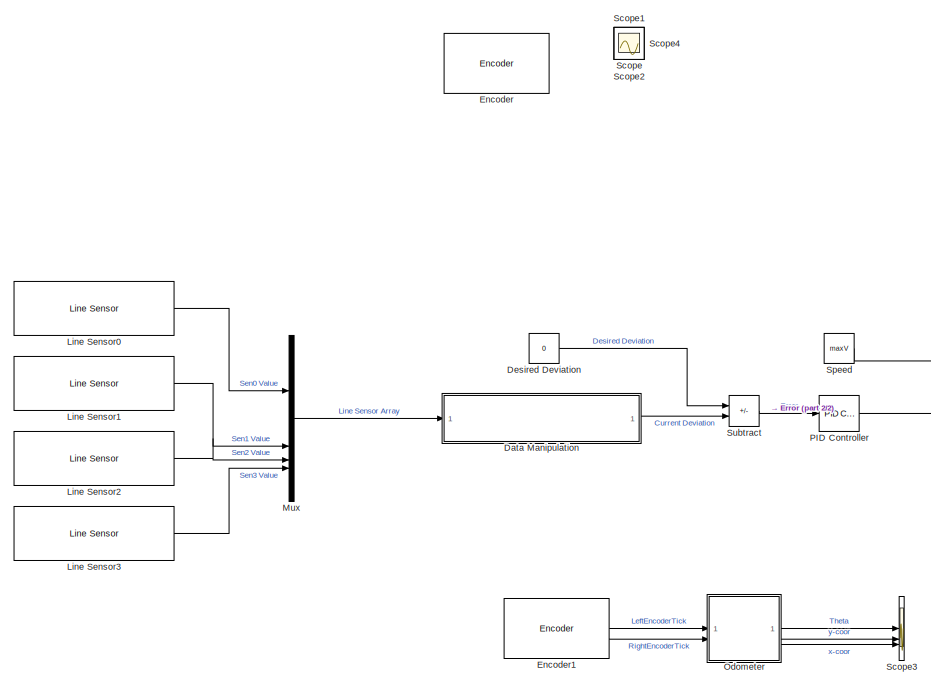
[diagram: root canvas - part 1/2, left side, full height]
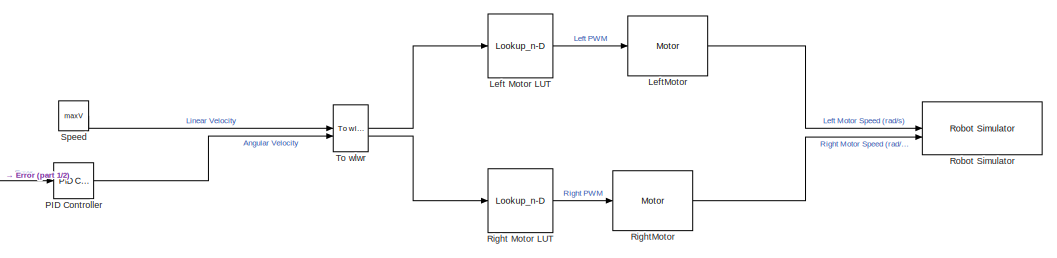
[diagram: root canvas - part 2/2, middle right region]
MODEL slx_b5ab94cf9eba
KIND model
CONFIG AbsTol = auto
CONFIG EnableMultiTasking = off
CONFIG FixedStep = 0.01
CONFIG MaxStep = auto
CONFIG MinStep = auto
CONFIG RelTol = 1e-3
CONFIG SampleTimeConstraint = Unconstrained
CONFIG SolverName = FixedStepDiscrete
CONFIG StartTime = 0.0
CONFIG StopTime = 30
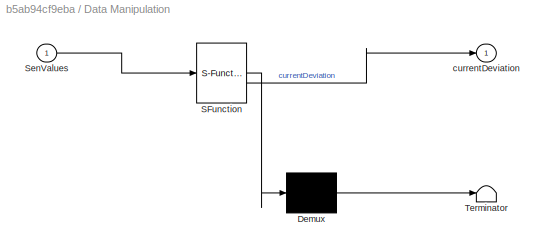
BLOCK [SubSystem] Data Manipulation
  ErrorFcn = Stateflow.Translate.translate
  LibrarySourceBlock = simulink/User-Defined\nFunctions/MATLAB Function
  PermitHierarchicalResolution = ExplicitOnly
  SFBlockType = MATLAB Function
  TreatAsAtomicUnit = on
BLOCK [Demux] Data Manipulation/ Demux 
  Outputs = 1
BLOCK [S-Function] Data Manipulation/ SFunction 
  EnableBusSupport = on
  FunctionName = sf_sfun
  PortCounts = [1 2]
  SFcnIsStateOwnerBlock = off
  SFunctionDeploymentMode = off
  Tag = Stateflow S-Function 2
BLOCK [Terminator] Data Manipulation/ Terminator 
BLOCK [Inport] Data Manipulation/SenValues
BLOCK [Outport] Data Manipulation/currentDeviation
BLOCK [Constant] Desired Deviation
  Value = 0
BLOCK [Reference] Encoder  REF=mobileRoboticsTrainingLib/Encoder
  Commented = on
  SourceBlock = mobileRoboticsTrainingLib/Encoder
  SourceProductName = Mobile Robotics Training Library
  SourceType = Encoder Simulation
BLOCK [Reference] Encoder1  REF=mobileRoboticsTrainingLib/Encoder
  SourceBlock = mobileRoboticsTrainingLib/Encoder
  SourceProductName = Mobile Robotics Training Library
  SourceType = Encoder Simulation
BLOCK [Lookup_n-D] Left Motor LUT
  BreakpointsForDimension1 = WheelSpeed
  ExtrapMethod = Clip
  InputPortMap = u0
  InternalRulePriority = Speed
  InterpMethod = Nearest
  NumberOfTableDimensions = 1
  RndMeth = Simplest
  Table = InputPWM
BLOCK [Reference] LeftMotor  REF=mobileRoboticsTrainingLib/Motor
  SourceBlock = mobileRoboticsTrainingLib/Motor
  SourceProductName = Mobile Robotics Training Library
  SourceType = Motor Model
BLOCK [Reference] Line Sensor0  REF=mobileRoboticsTrainingLib/Line Sensor
  SourceBlock = mobileRoboticsTrainingLib/Line Sensor
  SourceProductName = Mobile Robotics Training Library
  SourceType = Line Sensor Simulation
BLOCK [Reference] Line Sensor1  REF=mobileRoboticsTrainingLib/Line Sensor
  SourceBlock = mobileRoboticsTrainingLib/Line Sensor
  SourceProductName = Mobile Robotics Training Library
  SourceType = Line Sensor Simulation
BLOCK [Reference] Line Sensor2  REF=mobileRoboticsTrainingLib/Line Sensor
  SourceBlock = mobileRoboticsTrainingLib/Line Sensor
  SourceProductName = Mobile Robotics Training Library
  SourceType = Line Sensor Simulation
BLOCK [Reference] Line Sensor3  REF=mobileRoboticsTrainingLib/Line Sensor
  SourceBlock = mobileRoboticsTrainingLib/Line Sensor
  SourceProductName = Mobile Robotics Training Library
  SourceType = Line Sensor Simulation
BLOCK [Mux] Mux
  DisplayOption = bar
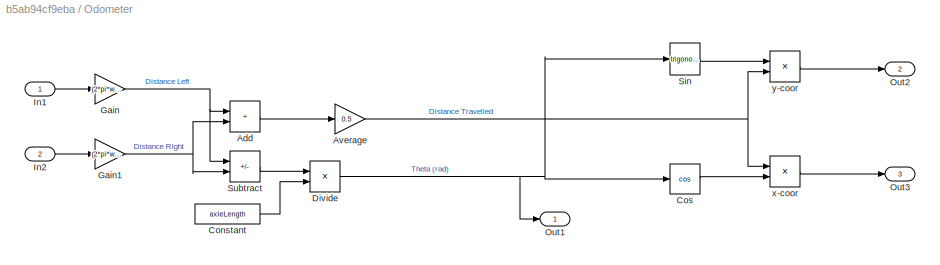
BLOCK [SubSystem] Odometer
BLOCK [Sum] Odometer/Add
  IconShape = rectangular
BLOCK [Gain] Odometer/Average
  Gain = 0.5
BLOCK [Constant] Odometer/Constant
  Value = axleLength
BLOCK [Trigonometry] Odometer/Cos
  Operator = cos
  OutputSignalType = real
BLOCK [Product] Odometer/Divide
  Inputs = */
BLOCK [Gain] Odometer/Gain
  Gain = (2*pi*wheelR)/ticksPerRot
BLOCK [Gain] Odometer/Gain1
  Gain = (2*pi*wheelR)/ticksPerRot
BLOCK [Inport] Odometer/In1
BLOCK [Inport] Odometer/In2
  Port = 2
BLOCK [Outport] Odometer/Out1
BLOCK [Outport] Odometer/Out2
  Port = 2
BLOCK [Outport] Odometer/Out3
  Port = 3
BLOCK [Trigonometry] Odometer/Sin
  OutputSignalType = real
BLOCK [Sum] Odometer/Subtract
  IconShape = rectangular
  Inputs = -+
BLOCK [Product] Odometer/x-coor
BLOCK [Product] Odometer/y-coor
BLOCK [Reference] PID Controller  REF=slpidlib/PID Controller
  LibrarySourceBlock = simulink/Continuous/PID Controller
  SourceBlock = slpidlib/PID Controller
  SourceType = PID 1dof
BLOCK [Lookup_n-D] Right Motor LUT
  BreakpointsForDimension1 = WheelSpeed
  ExtrapMethod = Clip
  InputPortMap = u0
  InternalRulePriority = Speed
  InterpMethod = Nearest
  NumberOfTableDimensions = 1
  RndMeth = Simplest
  Table = InputPWM
BLOCK [Reference] RightMotor  REF=mobileRoboticsTrainingLib/Motor
  SourceBlock = mobileRoboticsTrainingLib/Motor
  SourceProductName = Mobile Robotics Training Library
  SourceType = Motor Model
BLOCK [Reference] Robot Simulator  REF=mobileRoboticsTrainingLib/Robot Simulator
  Priority = 99
  SourceBlock = mobileRoboticsTrainingLib/Robot Simulator
  SourceProductName = Mobile Robotics Training Library
  SourceType = Robot Simulator
BLOCK [Scope] Scope
  Floating = off
  IOType = viewer
  NumInputPorts = 1
  ScopeSpecificationString = Simulink.scopes.TimeScopeBlockCfg('CurrentConfiguration', extmgr.ConfigurationSet(extmgr.Configuration('Core','General UI',true),extmgr.Configuration('Core','Source UI',true),extmgr.Configuration('Sources','WiredSimulink',true),extmgr.Configuration('Visuals','Time Domain',true,'SerializedDisplays',{struct('MinYLimReal','2787.5','MaxYLimReal','2912.5','YLabelReal','','MinYLimMag','2787.5','MaxYLimM...<+1375ch>
BLOCK [Scope] Scope1
  Floating = off
  IOType = viewer
  NumInputPorts = 1
  ScopeSpecificationString = Simulink.scopes.TimeScopeBlockCfg('CurrentConfiguration', extmgr.ConfigurationSet(extmgr.Configuration('Core','General UI',true),extmgr.Configuration('Core','Source UI',true),extmgr.Configuration('Sources','WiredSimulink',true,'DataLoggingVariableName','ScopeData1'),extmgr.Configuration('Visuals','Time Domain',true,'SerializedDisplays',{struct('MinYLimReal','-83.33333','MaxYLimReal','83.33333','YL...<+1424ch>
BLOCK [Scope] Scope2
  Floating = off
  IOType = viewer
  NumInputPorts = 1
  ScopeSpecificationString = Simulink.scopes.TimeScopeBlockCfg('CurrentConfiguration', extmgr.ConfigurationSet(extmgr.Configuration('Core','General UI',true),extmgr.Configuration('Core','Source UI',true),extmgr.Configuration('Sources','WiredSimulink',true,'DataLoggingVariableName','ScopeData2'),extmgr.Configuration('Visuals','Time Domain',true,'SerializedDisplays',{struct('MinYLimReal','2787.5','MaxYLimReal','2912.5','YLabelR...<+1420ch>
BLOCK [Scope] Scope3
  Floating = off
  NumInputPorts = 3
  ScopeSpecificationString = Simulink.scopes.TimeScopeBlockCfg('CurrentConfiguration', extmgr.ConfigurationSet(extmgr.Configuration('Core','General UI',true),extmgr.Configuration('Core','Source UI',true),extmgr.Configuration('Sources','WiredSimulink',true,'DataLoggingVariableName','ScopeData1'),extmgr.Configuration('Visuals','Time Domain',true,'SerializedDisplays',{struct('MinYLimReal','-298.33028','MaxYLimReal','1593.00983',...<+1457ch>
BLOCK [Scope] Scope4
  Floating = off
  IOType = viewer
  NumInputPorts = 1
  ScopeSpecificationString = Simulink.scopes.TimeScopeBlockCfg('CurrentConfiguration', extmgr.ConfigurationSet(extmgr.Configuration('Core','General UI',true),extmgr.Configuration('Core','Source UI',true),extmgr.Configuration('Sources','WiredSimulink',true,'DataLoggingVariableName','ScopeData2'),extmgr.Configuration('Visuals','Time Domain',true,'SerializedDisplays',{struct('MinYLimReal','-0.00497','MaxYLimReal','0.0447','YLabe...<+1397ch>
BLOCK [Constant] Speed
  Value = maxV
BLOCK [Sum] Subtract
  IconShape = rectangular
  Inputs = +-
BLOCK [Reference] To wlwr  REF=mobileRoboticsTrainingLib/To wlwr
  SourceBlock = mobileRoboticsTrainingLib/To wlwr
  SourceProductName = Mobile Robotics Training Library
  SourceType = To wlwr
LINE Data Manipulation:1 -> Subtract:2
LINE Desired Deviation:1 -> Subtract:1
LINE Encoder1:1 -> Odometer:1
LINE Encoder1:2 -> Odometer:2
LINE Left Motor LUT:1 -> LeftMotor:1
LINE LeftMotor:1 -> Robot Simulator:1
LINE Line Sensor0:1 -> Mux:1
LINE Line Sensor1:1 -> Mux:2
LINE Line Sensor2:1 -> Mux:3
LINE Line Sensor3:1 -> Mux:4
LINE Mux:1 -> Data Manipulation:1
LINE Odometer/Add:1 -> Odometer/Average:1
NET Odometer/Average:1 -> Odometer/x-coor:1, Odometer/y-coor:2
LINE Odometer/Constant:1 -> Odometer/Divide:2
LINE Odometer/Cos:1 -> Odometer/x-coor:2
NET Odometer/Divide:1 -> Odometer/Cos:1, Odometer/Out1:1, Odometer/Sin:1
NET Odometer/Gain1:1 -> Odometer/Add:2, Odometer/Subtract:2
NET Odometer/Gain:1 -> Odometer/Add:1, Odometer/Subtract:1
LINE Odometer/In1:1 -> Odometer/Gain:1
LINE Odometer/In2:1 -> Odometer/Gain1:1
LINE Odometer/Sin:1 -> Odometer/y-coor:1
LINE Odometer/Subtract:1 -> Odometer/Divide:1
LINE Odometer/x-coor:1 -> Odometer/Out3:1
LINE Odometer/y-coor:1 -> Odometer/Out2:1
LINE Odometer:1 -> Scope3:1
LINE Odometer:2 -> Scope3:2
LINE Odometer:3 -> Scope3:3
LINE PID Controller:1 -> To wlwr:2
LINE Right Motor LUT:1 -> RightMotor:1
LINE RightMotor:1 -> Robot Simulator:2
LINE Speed:1 -> To wlwr:1
LINE Subtract:1 -> PID Controller:1
LINE To wlwr:1 -> Left Motor LUT:1
LINE To wlwr:2 -> Right Motor LUT:1
note: NET lines group one-source signal fan-out (src -> all destinations, sorted); 1:1 wires keep LINE
CHART Data Manipulation states=1 transitions=1
  STATE_LABEL 'eML_blk_kernel()'
  STATE_LABEL 'SCRIPT:\nfunction currentDeviation = fcn(SenValues)\ntotalZero = 0; % Initialize number of sensors not detecting lines\nfor i=1:1:size(SenValues, 1)\n    if (SenValues(i) == 2800)\n        totalZero = totalZero + 1;  % Determine number of sensors not detecting lines\n    end\nend\n\nif totalZero == 0\n    currentDeviation = 0; % Divide by 0 case \nelse\n    currentDeviation = ((SenValues(1)*-2)+(SenValues(2)*...<+95ch>'
CHART  states=0 transitions=0
